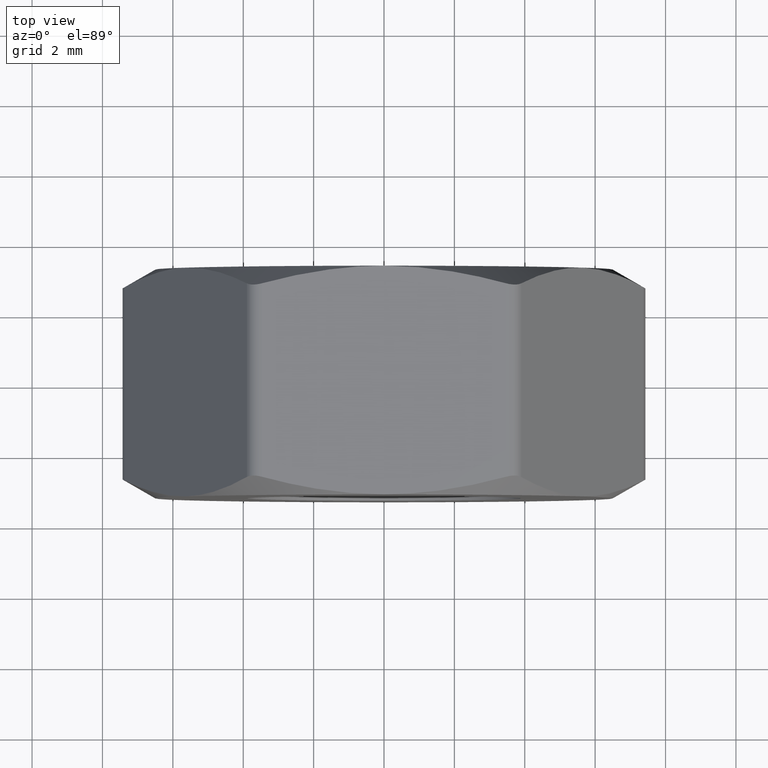
[diagram: clean part render]
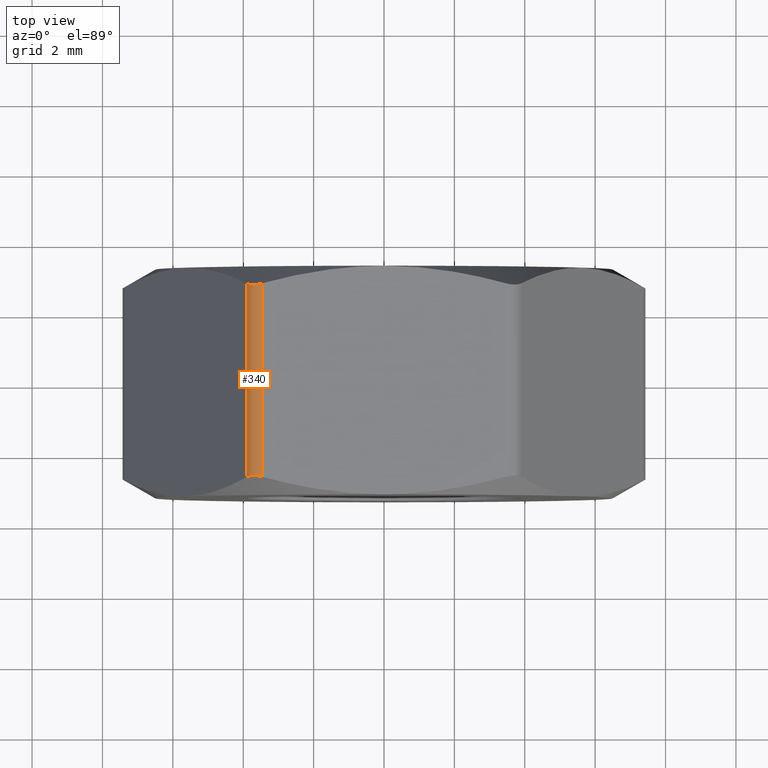
[diagram: same view with one face highlighted and labeled with its STEP entity id]
A machine part, top view. The second image highlights one B-rep face of the part: STEP entity #340.
In plain terms, the highlighted cylindrical surface (edge-blend (fillet) strip) has radius 0.5 mm, axis along (0, -1, 0).
Its self-contained STEP definition (entity closure, byte-faithful):
#25 = ORIENTED_EDGE ( 'NONE', *, *, #1004, .F. ) ;
#41 = CARTESIAN_POINT ( 'NONE',  ( -3.464101615138759800, 2.750326475674608400, 6.499999999999997300 ) ) ;
#42 = CYLINDRICAL_SURFACE ( 'NONE', #895, 0.4999999999999995600 ) ;
#129 = CARTESIAN_POINT ( 'NONE',  ( -3.897114317028936600, 2.750326475674319300, 6.250000000001791500 ) ) ;
#154 = LINE ( 'NONE', #738, #775 ) ;
#206 = CARTESIAN_POINT ( 'NONE',  ( -3.464101615138759800, -2.750326475674608400, 6.499999999999997300 ) ) ;
#221 = CARTESIAN_POINT ( 'NONE',  ( -3.789999326411488400, -2.714059782672261400, 6.389282840782543700 ) ) ;
#255 = B_SPLINE_CURVE_WITH_KNOTS ( 'NONE', 3,
 ( #1121, #595, #1610, #221, #1370, #849 ),
 .UNSPECIFIED., .F., .F.,
 ( 4, 2, 4 ),
 ( 9.773627425926101700E-016, 0.0002636355533731630700, 0.0005272711067453488300 ),
 .UNSPECIFIED. ) ;
#280 = EDGE_CURVE ( 'NONE', #1433, #433, #308, .T. ) ;
#308 = B_SPLINE_CURVE_WITH_KNOTS ( 'NONE', 3,
 ( #129, #1123, #523, #1041, #1033, #905 ),
 .UNSPECIFIED., .F., .F.,
 ( 4, 2, 4 ),
 ( 2.009003396756986000E-015, 0.0002636355533731606300, 0.0005272711067443122300 ),
 .UNSPECIFIED. ) ;
#311 = LINE ( 'NONE', #794, #1407 ) ;
#340 = ADVANCED_FACE ( 'NONE', ( #1489 ), #42, .T. ) ;
#388 = ORIENTED_EDGE ( 'NONE', *, *, #1443, .F. ) ;
#424 = DIRECTION ( 'NONE',  ( 0.0000000000000000000, -1.000000000000000000, 0.0000000000000000000 ) ) ;
#433 = VERTEX_POINT ( 'NONE', #41 ) ;
#523 = CARTESIAN_POINT ( 'NONE',  ( -3.790687565813048100, 2.714143658310134400, 6.388705627901935600 ) ) ;
#595 = CARTESIAN_POINT ( 'NONE',  ( -3.550047726132998300, -2.726988866945061900, 6.499999999999998200 ) ) ;
#636 = ORIENTED_EDGE ( 'NONE', *, *, #1082, .F. ) ;
#738 = CARTESIAN_POINT ( 'NONE',  ( -3.897114317029971800, 3.250000000000000000, 6.249999999999998200 ) ) ;
#775 = VECTOR ( 'NONE', #990, 1000.000000000000000 ) ;
#794 = CARTESIAN_POINT ( 'NONE',  ( -3.464101615137752200, 3.250000000000000000, 6.499999999999997300 ) ) ;
#849 = CARTESIAN_POINT ( 'NONE',  ( -3.897114317029972200, -2.750326475674881500, 6.249999999999996400 ) ) ;
#856 = VERTEX_POINT ( 'NONE', #206 ) ;
#895 = AXIS2_PLACEMENT_3D ( 'NONE', #1420, #424, #1171 ) ;
#898 = EDGE_LOOP ( 'NONE', ( #1191, #636, #25, #388 ) ) ;
#905 = CARTESIAN_POINT ( 'NONE',  ( -3.464101615138759800, 2.750326475674608400, 6.499999999999997300 ) ) ;
#990 = DIRECTION ( 'NONE',  ( -0.0000000000000000000, 1.000000000000000000, -0.0000000000000000000 ) ) ;
#1004 = EDGE_CURVE ( 'NONE', #856, #1561, #255, .T. ) ;
#1033 = CARTESIAN_POINT ( 'NONE',  ( -3.550077289892498800, 2.726980839270278300, 6.499999999999991100 ) ) ;
#1041 = CARTESIAN_POINT ( 'NONE',  ( -3.638281588876210600, 2.714059782672265400, 6.476877117389367600 ) ) ;
#1082 = EDGE_CURVE ( 'NONE', #1561, #1433, #154, .T. ) ;
#1121 = CARTESIAN_POINT ( 'NONE',  ( -3.464101615138759800, -2.750326475674608400, 6.499999999999997300 ) ) ;
#1123 = CARTESIAN_POINT ( 'NONE',  ( -3.854141261532511900, 2.726988866944860800, 6.324431515478075900 ) ) ;
#1171 = DIRECTION ( 'NONE',  ( 0.0000000000000000000, 0.0000000000000000000, -1.000000000000000000 ) ) ;
#1178 = DIRECTION ( 'NONE',  ( 0.0000000000000000000, -1.000000000000000000, 0.0000000000000000000 ) ) ;
#1191 = ORIENTED_EDGE ( 'NONE', *, *, #280, .F. ) ;
#1370 = CARTESIAN_POINT ( 'NONE',  ( -3.854126479652452800, -2.726980839270193500, 6.324457118445371500 ) ) ;
#1407 = VECTOR ( 'NONE', #1178, 1000.000000000000000 ) ;
#1420 = CARTESIAN_POINT ( 'NONE',  ( -3.464101615137752200, 3.250000000000000000, 5.999999999999997300 ) ) ;
#1433 = VERTEX_POINT ( 'NONE', #1564 ) ;
#1443 = EDGE_CURVE ( 'NONE', #433, #856, #311, .T. ) ;
#1489 = FACE_OUTER_BOUND ( 'NONE', #898, .T. ) ;
#1561 = VERTEX_POINT ( 'NONE', #1626 ) ;
#1564 = CARTESIAN_POINT ( 'NONE',  ( -3.897114317028936600, 2.750326475674319300, 6.250000000001791500 ) ) ;
#1610 = CARTESIAN_POINT ( 'NONE',  ( -3.637437588156819100, -2.714143658310138400, 6.477184543755056400 ) ) ;
#1626 = CARTESIAN_POINT ( 'NONE',  ( -3.897114317029972200, -2.750326475674881500, 6.249999999999996400 ) ) ;